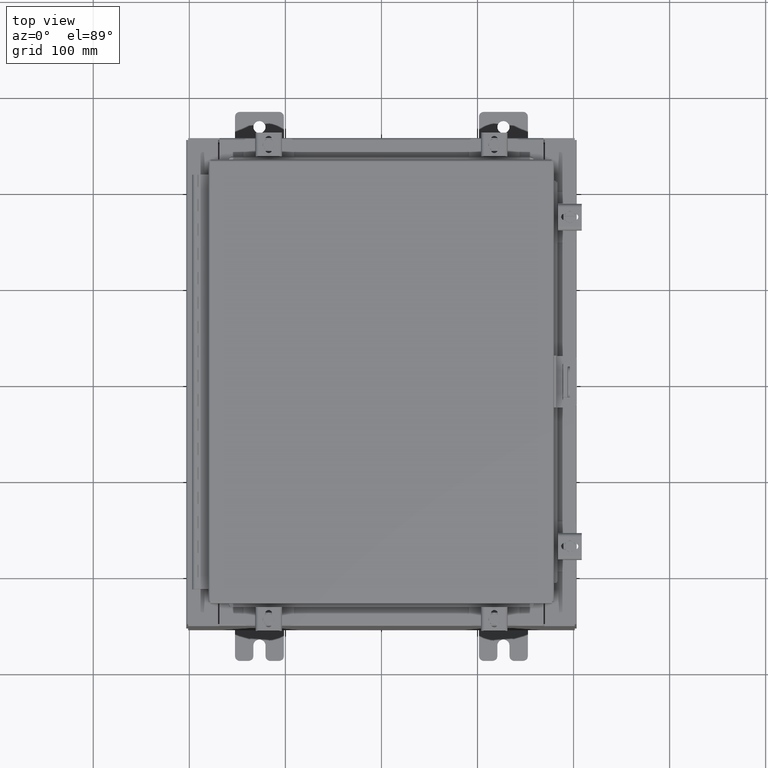
[diagram: clean part render]
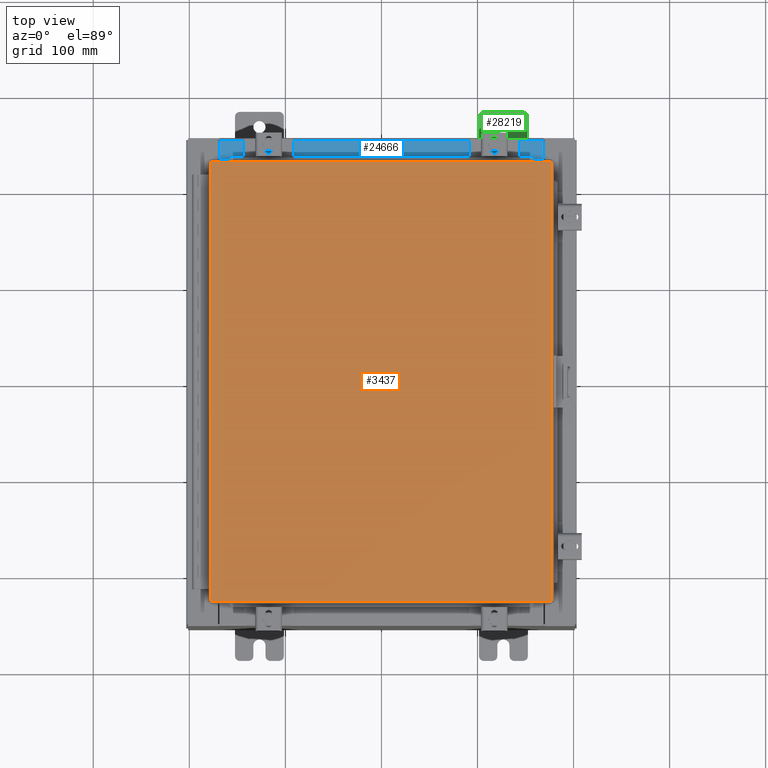
[diagram: same view with three faces highlighted in distinct colors, each labeled with its STEP entity id]
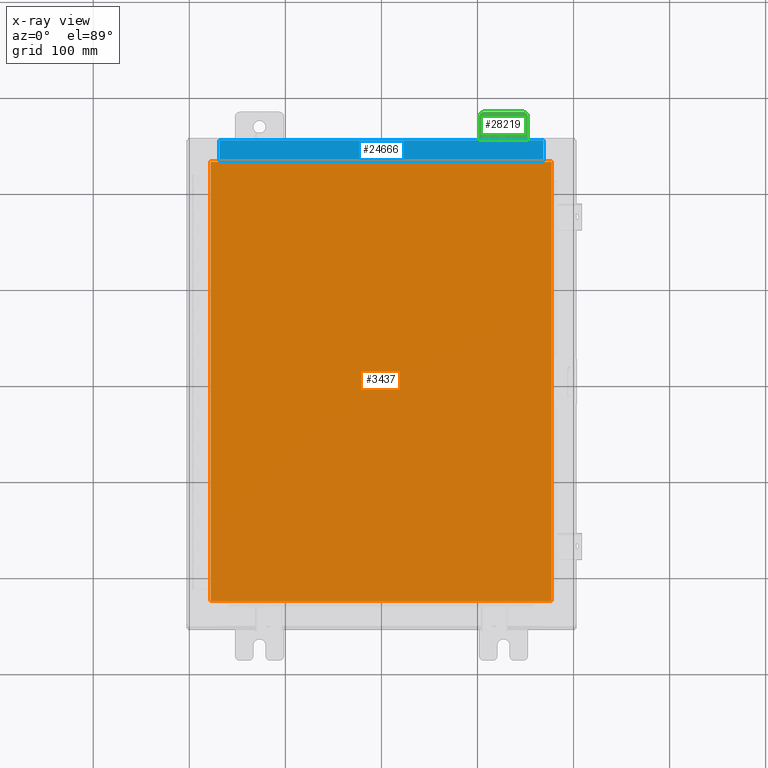
[diagram: x-ray of the same camera — body ghosted, the three highlighted faces saturated]
A machine part, top view with three faces highlighted in distinct colors.
The next image is the same camera in x-ray (body ghosted, the three faces saturated) — at least one of them is partly hidden behind the body in this view.
Their STEP definitions:

[orange] entity #3437 — the highlighted planar face has unit normal (0, 0, -1).
#530 = CARTESIAN_POINT ( 'NONE',  ( 0.0000000000000000000, 0.0000000000000000000, 0.0000000000000000000 ) ) ;
#1176 = VECTOR ( 'NONE', #23983, 39.37007874015748100 ) ;
#2169 = VECTOR ( 'NONE', #6890, 39.37007874015748100 ) ;
#2572 = DIRECTION ( 'NONE',  ( 1.000000000000000000, -0.0000000000000000000, -0.0000000000000000000 ) ) ;
#2839 = CARTESIAN_POINT ( 'NONE',  ( 6.990300000000002200, -9.006299999999997800, -2.048885995248197400E-016 ) ) ;
#2915 = VECTOR ( 'NONE', #2572, 39.37007874015748100 ) ;
#2992 = DIRECTION ( 'NONE',  ( -1.000000000000000000, 0.0000000000000000000, -0.0000000000000000000 ) ) ;
#3437 = ADVANCED_FACE ( 'NONE', ( #10294 ), #27427, .F. ) ;
#4715 = DIRECTION ( 'NONE',  ( 0.0000000000000000000, -1.000000000000000000, 0.0000000000000000000 ) ) ;
#4752 = CARTESIAN_POINT ( 'NONE',  ( -6.990299999999997700, 9.006300000000001300, -2.048885995248197400E-016 ) ) ;
#6890 = DIRECTION ( 'NONE',  ( -1.000000000000000000, -0.0000000000000000000, -0.0000000000000000000 ) ) ;
#7003 = DIRECTION ( 'NONE',  ( 0.0000000000000000000, 0.0000000000000000000, -1.000000000000000000 ) ) ;
#7255 = AXIS2_PLACEMENT_3D ( 'NONE', #530, #7003, #2992 ) ;
#8147 = VERTEX_POINT ( 'NONE', #2839 ) ;
#8407 = ORIENTED_EDGE ( 'NONE', *, *, #23211, .T. ) ;
#9414 = CARTESIAN_POINT ( 'NONE',  ( -6.990299999999997700, -9.006299999999997800, -2.048885995248197400E-016 ) ) ;
#9839 = EDGE_CURVE ( 'NONE', #8147, #20099, #25389, .T. ) ;
#10294 = FACE_OUTER_BOUND ( 'NONE', #15469, .T. ) ;
#10357 = VERTEX_POINT ( 'NONE', #13696 ) ;
#10703 = ORIENTED_EDGE ( 'NONE', *, *, #9839, .T. ) ;
#11454 = CARTESIAN_POINT ( 'NONE',  ( 6.990300000000002200, 9.006300000000001300, -7.512581982576723400E-016 ) ) ;
#11691 = EDGE_CURVE ( 'NONE', #12613, #10357, #13934, .T. ) ;
#12613 = VERTEX_POINT ( 'NONE', #27695 ) ;
#13696 = CARTESIAN_POINT ( 'NONE',  ( -6.990299999999997700, -9.006299999999997800, -2.048885995248197400E-016 ) ) ;
#13934 = LINE ( 'NONE', #4752, #19235 ) ;
#15011 = LINE ( 'NONE', #18252, #2169 ) ;
#15469 = EDGE_LOOP ( 'NONE', ( #28476, #10703, #8407, #22403 ) ) ;
#18252 = CARTESIAN_POINT ( 'NONE',  ( 6.990300000000002200, 9.006300000000001300, -7.512581982576723400E-016 ) ) ;
#19235 = VECTOR ( 'NONE', #4715, 39.37007874015748100 ) ;
#20099 = VERTEX_POINT ( 'NONE', #11454 ) ;
#22403 = ORIENTED_EDGE ( 'NONE', *, *, #11691, .T. ) ;
#22703 = EDGE_CURVE ( 'NONE', #10357, #8147, #27119, .T. ) ;
#23211 = EDGE_CURVE ( 'NONE', #20099, #12613, #15011, .T. ) ;
#23983 = DIRECTION ( 'NONE',  ( 0.0000000000000000000, 1.000000000000000000, 0.0000000000000000000 ) ) ;
#25389 = LINE ( 'NONE', #26389, #1176 ) ;
#26389 = CARTESIAN_POINT ( 'NONE',  ( 6.990300000000002200, -9.006299999999997800, -2.048885995248197400E-016 ) ) ;
#27119 = LINE ( 'NONE', #9414, #2915 ) ;
#27427 = PLANE ( 'NONE',  #7255 ) ;
#27695 = CARTESIAN_POINT ( 'NONE',  ( -6.990299999999997700, 9.006300000000001300, -2.048885995248197400E-016 ) ) ;
#28476 = ORIENTED_EDGE ( 'NONE', *, *, #22703, .T. ) ;

[blue] entity #24666 — the highlighted planar face has unit normal (0, 0, 1).
#1366 = CARTESIAN_POINT ( 'NONE',  ( -6.637200000000000000, -1.287299999999999200, 5.000000000000005300 ) ) ;
#1760 = DIRECTION ( 'NONE',  ( -0.0000000000000000000, 1.000000000000000000, -3.566381192773190000E-015 ) ) ;
#3565 = DIRECTION ( 'NONE',  ( 0.0000000000000000000, 3.566381192773190000E-015, 1.000000000000000000 ) ) ;
#3661 = VECTOR ( 'NONE', #3804, 39.37007874015748100 ) ;
#3804 = DIRECTION ( 'NONE',  ( -1.000000000000000000, 0.0000000000000000000, 0.0000000000000000000 ) ) ;
#4699 = VECTOR ( 'NONE', #7467, 39.37007874015748100 ) ;
#5829 = VECTOR ( 'NONE', #17527, 39.37007874015748100 ) ;
#6015 = CARTESIAN_POINT ( 'NONE',  ( 6.637200000000000000, -1.287299999999999900, 5.000000000000005300 ) ) ;
#7212 = EDGE_CURVE ( 'NONE', #16588, #29444, #16505, .T. ) ;
#7467 = DIRECTION ( 'NONE',  ( -1.000000000000000000, 0.0000000000000000000, 0.0000000000000000000 ) ) ;
#7792 = VECTOR ( 'NONE', #1760, 39.37007874015748100 ) ;
#8526 = CARTESIAN_POINT ( 'NONE',  ( -6.637200000000000000, -0.07469999999999973900, 5.000000000000000900 ) ) ;
#8724 = CARTESIAN_POINT ( 'NONE',  ( 6.637199999999999100, -0.08769999999999993100, 5.000000000000000900 ) ) ;
#10595 = EDGE_CURVE ( 'NONE', #12892, #21761, #10797, .T. ) ;
#10797 = LINE ( 'NONE', #18243, #4699 ) ;
#12892 = VERTEX_POINT ( 'NONE', #8724 ) ;
#13877 = LINE ( 'NONE', #8526, #7792 ) ;
#13972 = ORIENTED_EDGE ( 'NONE', *, *, #7212, .F. ) ;
#16505 = LINE ( 'NONE', #21677, #3661 ) ;
#16548 = CARTESIAN_POINT ( 'NONE',  ( 6.637200000000000000, -1.300299999999999800, 5.000000000000005300 ) ) ;
#16588 = VERTEX_POINT ( 'NONE', #6015 ) ;
#17223 = CARTESIAN_POINT ( 'NONE',  ( 0.0000000000000000000, 1.782631094477738200E-014, 5.000000000000000900 ) ) ;
#17527 = DIRECTION ( 'NONE',  ( -0.0000000000000000000, -1.000000000000000000, 3.566381192773190000E-015 ) ) ;
#17953 = LINE ( 'NONE', #16548, #5829 ) ;
#18243 = CARTESIAN_POINT ( 'NONE',  ( 0.0000000000000000000, -0.08770000000000026400, 5.000000000000000900 ) ) ;
#18802 = EDGE_CURVE ( 'NONE', #12892, #16588, #17953, .T. ) ;
#19474 = DIRECTION ( 'NONE',  ( 0.0000000000000000000, -1.000000000000000000, 3.566381192773190000E-015 ) ) ;
#21677 = CARTESIAN_POINT ( 'NONE',  ( 6.637200000000000900, -1.287299999999999900, 5.000000000000005300 ) ) ;
#21761 = VERTEX_POINT ( 'NONE', #29301 ) ;
#23172 = PLANE ( 'NONE',  #26147 ) ;
#24121 = FACE_OUTER_BOUND ( 'NONE', #25990, .T. ) ;
#24314 = EDGE_CURVE ( 'NONE', #29444, #21761, #13877, .T. ) ;
#24666 = ADVANCED_FACE ( 'NONE', ( #24121 ), #23172, .T. ) ;
#25990 = EDGE_LOOP ( 'NONE', ( #28717, #13972, #29251, #27284 ) ) ;
#26147 = AXIS2_PLACEMENT_3D ( 'NONE', #17223, #3565, #19474 ) ;
#27284 = ORIENTED_EDGE ( 'NONE', *, *, #10595, .T. ) ;
#28717 = ORIENTED_EDGE ( 'NONE', *, *, #24314, .F. ) ;
#29251 = ORIENTED_EDGE ( 'NONE', *, *, #18802, .F. ) ;
#29301 = CARTESIAN_POINT ( 'NONE',  ( -6.637200000000000000, -0.08770000000000026400, 5.000000000000000900 ) ) ;
#29444 = VERTEX_POINT ( 'NONE', #1366 ) ;

[green] entity #28219 — the highlighted planar face has unit normal (0, 0, 1).
#13 = LINE ( 'NONE', #28359, #23525 ) ;
#339 = EDGE_LOOP ( 'NONE', ( #7556, #28299 ) ) ;
#420 = VERTEX_POINT ( 'NONE', #13905 ) ;
#549 = AXIS2_PLACEMENT_3D ( 'NONE', #17375, #12565, #10082 ) ;
#555 = VERTEX_POINT ( 'NONE', #1030 ) ;
#854 = EDGE_CURVE ( 'NONE', #420, #4926, #19640, .T. ) ;
#1030 = CARTESIAN_POINT ( 'NONE',  ( 1.928684683526972300E-016, -1.060000000000002100, 0.2500000000000005000 ) ) ;
#1222 = EDGE_CURVE ( 'NONE', #6080, #12476, #28915, .T. ) ;
#1259 = AXIS2_PLACEMENT_3D ( 'NONE', #8621, #26816, #13221 ) ;
#1563 = EDGE_CURVE ( 'NONE', #19291, #11577, #26400, .T. ) ;
#1589 = CARTESIAN_POINT ( 'NONE',  ( 0.0000000000000000000, 1.059999999999996300, 0.8099999999999938400 ) ) ;
#1654 = DIRECTION ( 'NONE',  ( -6.523827964459551700E-016, -1.000000000000000000, 0.0000000000000000000 ) ) ;
#1675 = CIRCLE ( 'NONE', #21282, 0.1900000000000011100 ) ;
#1827 = EDGE_CURVE ( 'NONE', #11577, #6080, #22153, .T. ) ;
#1836 = DIRECTION ( 'NONE',  ( 6.556435184794182400E-016, 1.000000000000000000, 0.0000000000000000000 ) ) ;
#1930 = CARTESIAN_POINT ( 'NONE',  ( 0.0000000000000000000, -1.060000000000002100, 0.4400000000000016700 ) ) ;
#3000 = CARTESIAN_POINT ( 'NONE',  ( 0.0000000000000000000, 1.249999999999997600, 0.9999999999999951200 ) ) ;
#3388 = DIRECTION ( 'NONE',  ( 0.0000000000000000000, 1.000000000000000000, -1.639108796198558100E-015 ) ) ;
#3502 = CARTESIAN_POINT ( 'NONE',  ( 0.0000000000000000000, 1.059999999999996500, 0.9999999999999953400 ) ) ;
#3894 = DIRECTION ( 'NONE',  ( 0.0000000000000000000, 0.0000000000000000000, -1.000000000000000000 ) ) ;
#4175 = CARTESIAN_POINT ( 'NONE',  ( 0.0000000000000000000, -1.250000000000003100, 0.4400000000000020000 ) ) ;
#4456 = LINE ( 'NONE', #5123, #15872 ) ;
#4645 = EDGE_CURVE ( 'NONE', #28975, #25948, #14168, .T. ) ;
#4773 = CARTESIAN_POINT ( 'NONE',  ( 0.0000000000000000000, -1.060000000000001600, 0.8099999999999978300 ) ) ;
#4792 = DIRECTION ( 'NONE',  ( 0.0000000000000000000, 0.0000000000000000000, -1.000000000000000000 ) ) ;
#4926 = VERTEX_POINT ( 'NONE', #18486 ) ;
#5123 = CARTESIAN_POINT ( 'NONE',  ( 0.0000000000000000000, 1.249999999999994200, -1.000000000000010400 ) ) ;
#5457 = ORIENTED_EDGE ( 'NONE', *, *, #8485, .T. ) ;
#6080 = VERTEX_POINT ( 'NONE', #12979 ) ;
#6430 = ORIENTED_EDGE ( 'NONE', *, *, #25786, .T. ) ;
#6773 = CARTESIAN_POINT ( 'NONE',  ( 0.0000000000000000000, -1.250000000000002400, 0.8099999999999980500 ) ) ;
#7057 = DIRECTION ( 'NONE',  ( 0.0000000000000000000, 0.0000000000000000000, -1.000000000000000000 ) ) ;
#7356 = CIRCLE ( 'NONE', #8374, 0.1900000000000011100 ) ;
#7556 = ORIENTED_EDGE ( 'NONE', *, *, #854, .F. ) ;
#7745 = ORIENTED_EDGE ( 'NONE', *, *, #16663, .T. ) ;
#7923 = AXIS2_PLACEMENT_3D ( 'NONE', #28917, #15329, #1654 ) ;
#8374 = AXIS2_PLACEMENT_3D ( 'NONE', #25107, #26725, #24808 ) ;
#8485 = EDGE_CURVE ( 'NONE', #12476, #12764, #4456, .T. ) ;
#8621 = CARTESIAN_POINT ( 'NONE',  ( 0.0000000000000000000, 0.0000000000000000000, 0.0000000000000000000 ) ) ;
#8680 = FACE_OUTER_BOUND ( 'NONE', #11241, .T. ) ;
#8801 = CIRCLE ( 'NONE', #25828, 0.2499999999999999200 ) ;
#9073 = VERTEX_POINT ( 'NONE', #16028 ) ;
#9278 = EDGE_CURVE ( 'NONE', #25948, #555, #15496, .T. ) ;
#9410 = ORIENTED_EDGE ( 'NONE', *, *, #23613, .T. ) ;
#9478 = EDGE_CURVE ( 'NONE', #28708, #11477, #22598, .T. ) ;
#9629 = CIRCLE ( 'NONE', #14195, 0.1900000000000011100 ) ;
#9728 = ORIENTED_EDGE ( 'NONE', *, *, #4645, .T. ) ;
#10082 = DIRECTION ( 'NONE',  ( 0.0000000000000000000, 0.0000000000000000000, -1.000000000000000000 ) ) ;
#10483 = VECTOR ( 'NONE', #29358, 39.37007874015748100 ) ;
#11241 = EDGE_LOOP ( 'NONE', ( #15623, #19877, #9728, #20009, #27751, #19100, #14934, #7745, #6430, #24547, #19146, #24991, #5457, #9410 ) ) ;
#11477 = VERTEX_POINT ( 'NONE', #27837 ) ;
#11490 = DIRECTION ( 'NONE',  ( 1.000000000000000000, 0.0000000000000000000, -0.0000000000000000000 ) ) ;
#11544 = EDGE_CURVE ( 'NONE', #9073, #23846, #13, .T. ) ;
#11577 = VERTEX_POINT ( 'NONE', #24664 ) ;
#11663 = CARTESIAN_POINT ( 'NONE',  ( 1.928684683526964400E-016, -1.060000000000003400, -0.2499999999999994400 ) ) ;
#11806 = CARTESIAN_POINT ( 'NONE',  ( 0.0000000000000000000, 1.249999999999997300, 0.8099999999999935000 ) ) ;
#12146 = CARTESIAN_POINT ( 'NONE',  ( 0.0000000000000000000, -1.250000000000004700, -0.4400000000000002200 ) ) ;
#12379 = DIRECTION ( 'NONE',  ( 1.000000000000000000, -0.0000000000000000000, -5.163192708025532000E-017 ) ) ;
#12476 = VERTEX_POINT ( 'NONE', #16841 ) ;
#12565 = DIRECTION ( 'NONE',  ( 1.000000000000000000, 0.0000000000000000000, -0.0000000000000000000 ) ) ;
#12764 = VERTEX_POINT ( 'NONE', #11806 ) ;
#12979 = CARTESIAN_POINT ( 'NONE',  ( 0.0000000000000000000, 1.059999999999993400, -1.000000000000010000 ) ) ;
#13159 = CARTESIAN_POINT ( 'NONE',  ( 0.0000000000000000000, -1.250000000000005600, -1.000000000000006200 ) ) ;
#13221 = DIRECTION ( 'NONE',  ( -0.0000000000000000000, 0.0000000000000000000, -1.000000000000000000 ) ) ;
#13425 = EDGE_CURVE ( 'NONE', #4926, #420, #8801, .T. ) ;
#13905 = CARTESIAN_POINT ( 'NONE',  ( 3.910348609313009100E-016, 0.6249999999999992200, -0.2499999999999999200 ) ) ;
#14168 = LINE ( 'NONE', #21936, #19466 ) ;
#14195 = AXIS2_PLACEMENT_3D ( 'NONE', #1589, #17552, #3894 ) ;
#14854 = CARTESIAN_POINT ( 'NONE',  ( 0.0000000000000000000, -1.250000000000002200, 0.9999999999999992200 ) ) ;
#14934 = ORIENTED_EDGE ( 'NONE', *, *, #11544, .T. ) ;
#14989 = DIRECTION ( 'NONE',  ( 1.000000000000000000, -0.0000000000000000000, -5.163192708025532000E-017 ) ) ;
#15329 = DIRECTION ( 'NONE',  ( -1.000000000000000000, 6.523827964459549700E-016, 5.163192708025532000E-017 ) ) ;
#15486 = FACE_BOUND ( 'NONE', #339, .T. ) ;
#15496 = CIRCLE ( 'NONE', #16532, 0.1900000000000011400 ) ;
#15618 = LINE ( 'NONE', #14854, #27702 ) ;
#15623 = ORIENTED_EDGE ( 'NONE', *, *, #9478, .T. ) ;
#15872 = VECTOR ( 'NONE', #18180, 39.37007874015748100 ) ;
#16028 = CARTESIAN_POINT ( 'NONE',  ( 4.780733988912460100E-016, -0.6249999999999993300, -0.2499999999999998600 ) ) ;
#16112 = VECTOR ( 'NONE', #3388, 39.37007874015748100 ) ;
#16532 = AXIS2_PLACEMENT_3D ( 'NONE', #1930, #11490, #4792 ) ;
#16663 = EDGE_CURVE ( 'NONE', #23846, #28017, #7356, .T. ) ;
#16841 = CARTESIAN_POINT ( 'NONE',  ( 0.0000000000000000000, 1.249999999999994700, -0.8100000000000092700 ) ) ;
#17156 = DIRECTION ( 'NONE',  ( 1.000000000000000000, 0.0000000000000000000, -0.0000000000000000000 ) ) ;
#17375 = CARTESIAN_POINT ( 'NONE',  ( 0.0000000000000000000, -1.060000000000004100, -0.8100000000000050500 ) ) ;
#17552 = DIRECTION ( 'NONE',  ( 1.000000000000000000, 0.0000000000000000000, -0.0000000000000000000 ) ) ;
#17764 = CARTESIAN_POINT ( 'NONE',  ( 6.829619984160658000E-017, -1.250000000000003800, 0.2500000000000005000 ) ) ;
#18180 = DIRECTION ( 'NONE',  ( 0.0000000000000000000, 1.639108796198553600E-015, 1.000000000000000000 ) ) ;
#18486 = CARTESIAN_POINT ( 'NONE',  ( 4.168508244714285900E-016, 0.6249999999999992200, 0.2499999999999999200 ) ) ;
#19100 = ORIENTED_EDGE ( 'NONE', *, *, #26550, .T. ) ;
#19146 = ORIENTED_EDGE ( 'NONE', *, *, #1827, .T. ) ;
#19291 = VERTEX_POINT ( 'NONE', #25449 ) ;
#19314 = DIRECTION ( 'NONE',  ( 0.0000000000000000000, -1.639108796198553600E-015, -1.000000000000000000 ) ) ;
#19466 = VECTOR ( 'NONE', #24667, 39.37007874015748100 ) ;
#19640 = CIRCLE ( 'NONE', #28728, 0.2499999999999999200 ) ;
#19877 = ORIENTED_EDGE ( 'NONE', *, *, #26139, .T. ) ;
#19980 = CARTESIAN_POINT ( 'NONE',  ( 0.0000000000000000000, 1.059999999999993600, -0.8100000000000089400 ) ) ;
#20009 = ORIENTED_EDGE ( 'NONE', *, *, #9278, .T. ) ;
#20011 = AXIS2_PLACEMENT_3D ( 'NONE', #19980, #17156, #25183 ) ;
#20717 = DIRECTION ( 'NONE',  ( 1.000000000000000000, 0.0000000000000000000, -0.0000000000000000000 ) ) ;
#20978 = VECTOR ( 'NONE', #1836, 39.37007874015748100 ) ;
#21282 = AXIS2_PLACEMENT_3D ( 'NONE', #4773, #20717, #7057 ) ;
#21471 = DIRECTION ( 'NONE',  ( -5.163192708025533800E-017, 0.0000000000000000000, -1.000000000000000000 ) ) ;
#21936 = CARTESIAN_POINT ( 'NONE',  ( 0.0000000000000000000, -1.250000000000002200, 0.9999999999999992200 ) ) ;
#22153 = LINE ( 'NONE', #13159, #16112 ) ;
#22266 = PLANE ( 'NONE',  #1259 ) ;
#22598 = LINE ( 'NONE', #3000, #10483 ) ;
#22962 = VERTEX_POINT ( 'NONE', #23991 ) ;
#23525 = VECTOR ( 'NONE', #25770, 39.37007874015748100 ) ;
#23613 = EDGE_CURVE ( 'NONE', #12764, #28708, #9629, .T. ) ;
#23846 = VERTEX_POINT ( 'NONE', #11663 ) ;
#23991 = CARTESIAN_POINT ( 'NONE',  ( 0.0000000000000000000, -0.6249999999999992200, 0.2500000000000005000 ) ) ;
#24279 = CARTESIAN_POINT ( 'NONE',  ( 4.039428427013647300E-016, 0.6249999999999992200, -9.783840404509077400E-018 ) ) ;
#24547 = ORIENTED_EDGE ( 'NONE', *, *, #1563, .T. ) ;
#24664 = CARTESIAN_POINT ( 'NONE',  ( 0.0000000000000000000, -1.060000000000004500, -1.000000000000006400 ) ) ;
#24667 = DIRECTION ( 'NONE',  ( 0.0000000000000000000, -1.639108796198553600E-015, -1.000000000000000000 ) ) ;
#24808 = DIRECTION ( 'NONE',  ( 0.0000000000000000000, 0.0000000000000000000, -1.000000000000000000 ) ) ;
#24991 = ORIENTED_EDGE ( 'NONE', *, *, #1222, .T. ) ;
#25107 = CARTESIAN_POINT ( 'NONE',  ( 0.0000000000000000000, -1.060000000000003400, -0.4400000000000005000 ) ) ;
#25183 = DIRECTION ( 'NONE',  ( 0.0000000000000000000, 0.0000000000000000000, -1.000000000000000000 ) ) ;
#25374 = EDGE_CURVE ( 'NONE', #555, #22962, #27733, .T. ) ;
#25449 = CARTESIAN_POINT ( 'NONE',  ( 0.0000000000000000000, -1.250000000000005300, -0.8100000000000047200 ) ) ;
#25770 = DIRECTION ( 'NONE',  ( -6.556435184794182400E-016, -1.000000000000000000, -1.639108796198545600E-016 ) ) ;
#25786 = EDGE_CURVE ( 'NONE', #28017, #19291, #15618, .T. ) ;
#25828 = AXIS2_PLACEMENT_3D ( 'NONE', #24279, #12379, #26720 ) ;
#25948 = VERTEX_POINT ( 'NONE', #4175 ) ;
#26139 = EDGE_CURVE ( 'NONE', #11477, #28975, #1675, .T. ) ;
#26400 = CIRCLE ( 'NONE', #549, 0.1900000000000011100 ) ;
#26550 = EDGE_CURVE ( 'NONE', #22962, #9073, #28698, .T. ) ;
#26720 = DIRECTION ( 'NONE',  ( -5.163192708025533800E-017, 0.0000000000000000000, -1.000000000000000000 ) ) ;
#26725 = DIRECTION ( 'NONE',  ( 1.000000000000000000, 0.0000000000000000000, -0.0000000000000000000 ) ) ;
#26816 = DIRECTION ( 'NONE',  ( 1.000000000000000000, 0.0000000000000000000, -0.0000000000000000000 ) ) ;
#27702 = VECTOR ( 'NONE', #19314, 39.37007874015748100 ) ;
#27733 = LINE ( 'NONE', #17764, #20978 ) ;
#27751 = ORIENTED_EDGE ( 'NONE', *, *, #25374, .T. ) ;
#27837 = CARTESIAN_POINT ( 'NONE',  ( 0.0000000000000000000, -1.060000000000001200, 0.9999999999999988900 ) ) ;
#28017 = VERTEX_POINT ( 'NONE', #12146 ) ;
#28219 = ADVANCED_FACE ( 'NONE', ( #15486, #8680 ), #22266, .T. ) ;
#28299 = ORIENTED_EDGE ( 'NONE', *, *, #13425, .F. ) ;
#28359 = CARTESIAN_POINT ( 'NONE',  ( 4.780733988912460100E-016, -0.6249999999999993300, -0.2499999999999993900 ) ) ;
#28553 = CARTESIAN_POINT ( 'NONE',  ( 4.039428427013647300E-016, 0.6249999999999992200, -9.783840404509077400E-018 ) ) ;
#28698 = CIRCLE ( 'NONE', #7923, 0.2499999999999999200 ) ;
#28708 = VERTEX_POINT ( 'NONE', #3502 ) ;
#28728 = AXIS2_PLACEMENT_3D ( 'NONE', #28553, #14989, #21471 ) ;
#28915 = CIRCLE ( 'NONE', #20011, 0.1900000000000011100 ) ;
#28917 = CARTESIAN_POINT ( 'NONE',  ( 4.780733988912460100E-016, -0.6249999999999993300, 5.858939755051854500E-017 ) ) ;
#28975 = VERTEX_POINT ( 'NONE', #6773 ) ;
#29358 = DIRECTION ( 'NONE',  ( 0.0000000000000000000, -1.000000000000000000, 1.639108796198558100E-015 ) ) ;